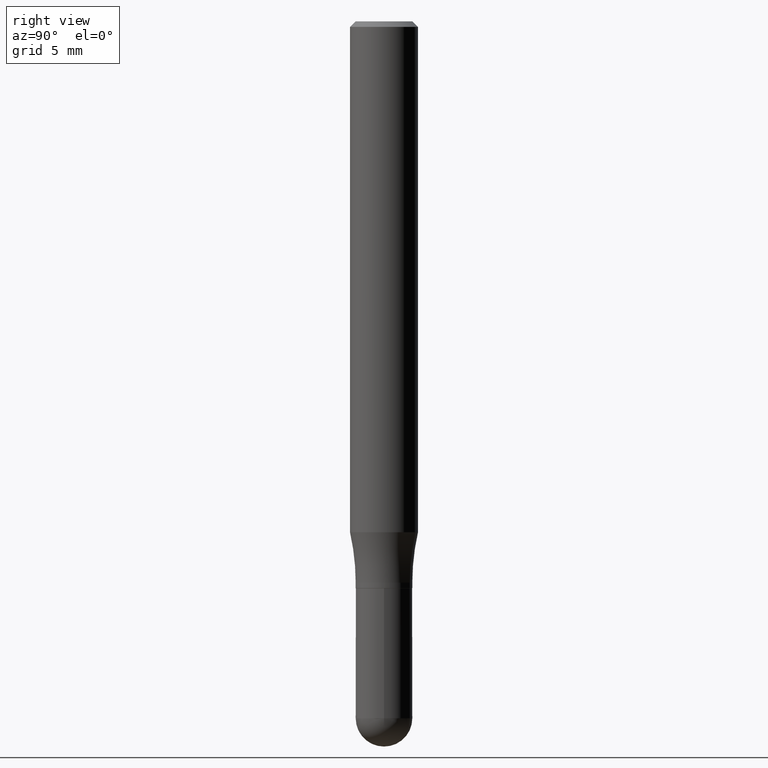
[diagram: clean part render]
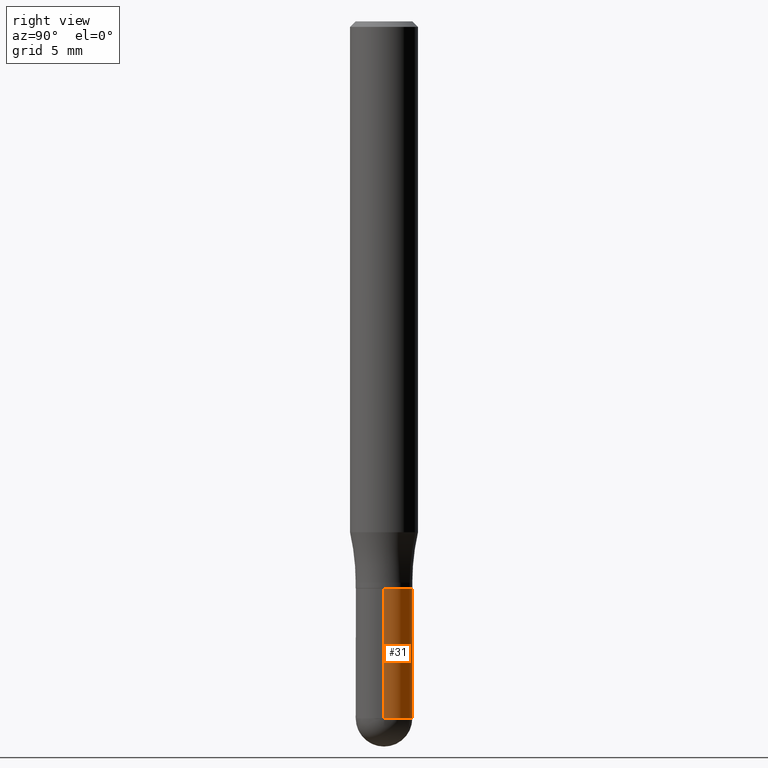
[diagram: same view with one face highlighted and labeled with its STEP entity id]
A machine part, right view. The second image highlights one B-rep face of the part: STEP entity #31.
In plain terms, the highlighted cylindrical surface (edge-blend (fillet) strip) has radius 1.9837 mm, axis along (-0, 0, 1).
Its self-contained STEP definition (entity closure, byte-faithful):
#17 = LINE ( 'NONE', #457, #486 ) ;
#31 = ADVANCED_FACE ( 'NONE', ( #57 ), #493, .T. ) ;
#52 = EDGE_CURVE ( 'NONE', #510, #242, #351, .T. ) ;
#57 = FACE_OUTER_BOUND ( 'NONE', #210, .T. ) ;
#63 = ORIENTED_EDGE ( 'NONE', *, *, #52, .T. ) ;
#73 = CARTESIAN_POINT ( 'NONE',  ( 4.699946498607214373E-29, -6.710277985122641264E-15, -1.921900000000000164 ) ) ;
#78 = VERTEX_POINT ( 'NONE', #110 ) ;
#85 = ORIENTED_EDGE ( 'NONE', *, *, #448, .T. ) ;
#86 = AXIS2_PLACEMENT_3D ( 'NONE', #102, #208, #420 ) ;
#102 = CARTESIAN_POINT ( 'NONE',  ( 0.000000000000000000, 0.000000000000000000, 0.000000000000000000 ) ) ;
#107 = CIRCLE ( 'NONE', #286, 0.07809999999999991949 ) ;
#109 = CARTESIAN_POINT ( 'NONE',  ( -0.07809999999999991949, -5.528797782238600914E-15, -1.921900000000000164 ) ) ;
#110 = CARTESIAN_POINT ( 'NONE',  ( -0.07809999999999987785, -5.528797782238600914E-15, -1.562999999999999723 ) ) ;
#118 = LINE ( 'NONE', #265, #219 ) ;
#124 = EDGE_CURVE ( 'NONE', #242, #476, #107, .T. ) ;
#159 = DIRECTION ( 'NONE',  ( -2.445468806185136597E-29, 3.491481338843145583E-15, 1.000000000000000000 ) ) ;
#164 = EDGE_CURVE ( 'NONE', #510, #199, #118, .T. ) ;
#174 = AXIS2_PLACEMENT_3D ( 'NONE', #276, #482, #202 ) ;
#192 = ORIENTED_EDGE ( 'NONE', *, *, #200, .F. ) ;
#199 = VERTEX_POINT ( 'NONE', #406 ) ;
#200 = EDGE_CURVE ( 'NONE', #199, #78, #319, .T. ) ;
#202 = DIRECTION ( 'NONE',  ( 1.000000000000000000, -6.982962677686265133E-15, 0.000000000000000000 ) ) ;
#208 = DIRECTION ( 'NONE',  ( -2.445468806185136597E-29, 3.491481338843145583E-15, 1.000000000000000000 ) ) ;
#210 = EDGE_LOOP ( 'NONE', ( #442, #85, #192, #322, #63 ) ) ;
#219 = VECTOR ( 'NONE', #473, 39.37007874015748143 ) ;
#242 = VERTEX_POINT ( 'NONE', #404 ) ;
#245 = AXIS2_PLACEMENT_3D ( 'NONE', #370, #294, #422 ) ;
#265 = CARTESIAN_POINT ( 'NONE',  ( 0.07809999999999989173, -5.453693851272967462E-16, 3.808294061896620798E-30 ) ) ;
#276 = CARTESIAN_POINT ( 'NONE',  ( 3.822267744067367613E-29, -5.457185332611835515E-15, -1.562999999999999723 ) ) ;
#286 = AXIS2_PLACEMENT_3D ( 'NONE', #73, #159, #311 ) ;
#294 = DIRECTION ( 'NONE',  ( -2.445468806185136597E-29, 3.491481338843145583E-15, 1.000000000000000000 ) ) ;
#311 = DIRECTION ( 'NONE',  ( 1.000000000000000000, -6.982962677686261189E-15, 0.000000000000000000 ) ) ;
#319 = CIRCLE ( 'NONE', #174, 0.07809999999999987785 ) ;
#322 = ORIENTED_EDGE ( 'NONE', *, *, #164, .F. ) ;
#333 = CARTESIAN_POINT ( 'NONE',  ( 0.07809999999999991949, -6.629101043994534642E-15, -1.921900000000000164 ) ) ;
#351 = CIRCLE ( 'NONE', #245, 0.07809999999999991949 ) ;
#370 = CARTESIAN_POINT ( 'NONE',  ( 4.699946498607214373E-29, -6.710277985122641264E-15, -1.921900000000000164 ) ) ;
#404 = CARTESIAN_POINT ( 'NONE',  ( 5.453693851273430917E-16, 0.07809999999999310549, -1.921900000000000386 ) ) ;
#406 = CARTESIAN_POINT ( 'NONE',  ( 0.07809999999999987785, -6.002554717739132163E-15, -1.562999999999999723 ) ) ;
#420 = DIRECTION ( 'NONE',  ( 1.000000000000000000, -6.982962677686267499E-15, 4.876176775795936353E-29 ) ) ;
#422 = DIRECTION ( 'NONE',  ( 1.000000000000000000, -6.982962677686261189E-15, 0.000000000000000000 ) ) ;
#442 = ORIENTED_EDGE ( 'NONE', *, *, #124, .T. ) ;
#448 = EDGE_CURVE ( 'NONE', #476, #78, #17, .T. ) ;
#457 = CARTESIAN_POINT ( 'NONE',  ( -0.07809999999999989173, 5.549338766286374759E-16, -3.841688305489076370E-30 ) ) ;
#463 = DIRECTION ( 'NONE',  ( -2.445468806185136877E-29, 3.491481338843145188E-15, 1.000000000000000000 ) ) ;
#473 = DIRECTION ( 'NONE',  ( -2.445468806185136877E-29, 3.491481338843145188E-15, 1.000000000000000000 ) ) ;
#476 = VERTEX_POINT ( 'NONE', #109 ) ;
#482 = DIRECTION ( 'NONE',  ( -2.445468806185136597E-29, 3.491481338843145583E-15, 1.000000000000000000 ) ) ;
#486 = VECTOR ( 'NONE', #463, 39.37007874015748143 ) ;
#493 = CYLINDRICAL_SURFACE ( 'NONE', #86, 0.07809999999999989173 ) ;
#510 = VERTEX_POINT ( 'NONE', #333 ) ;